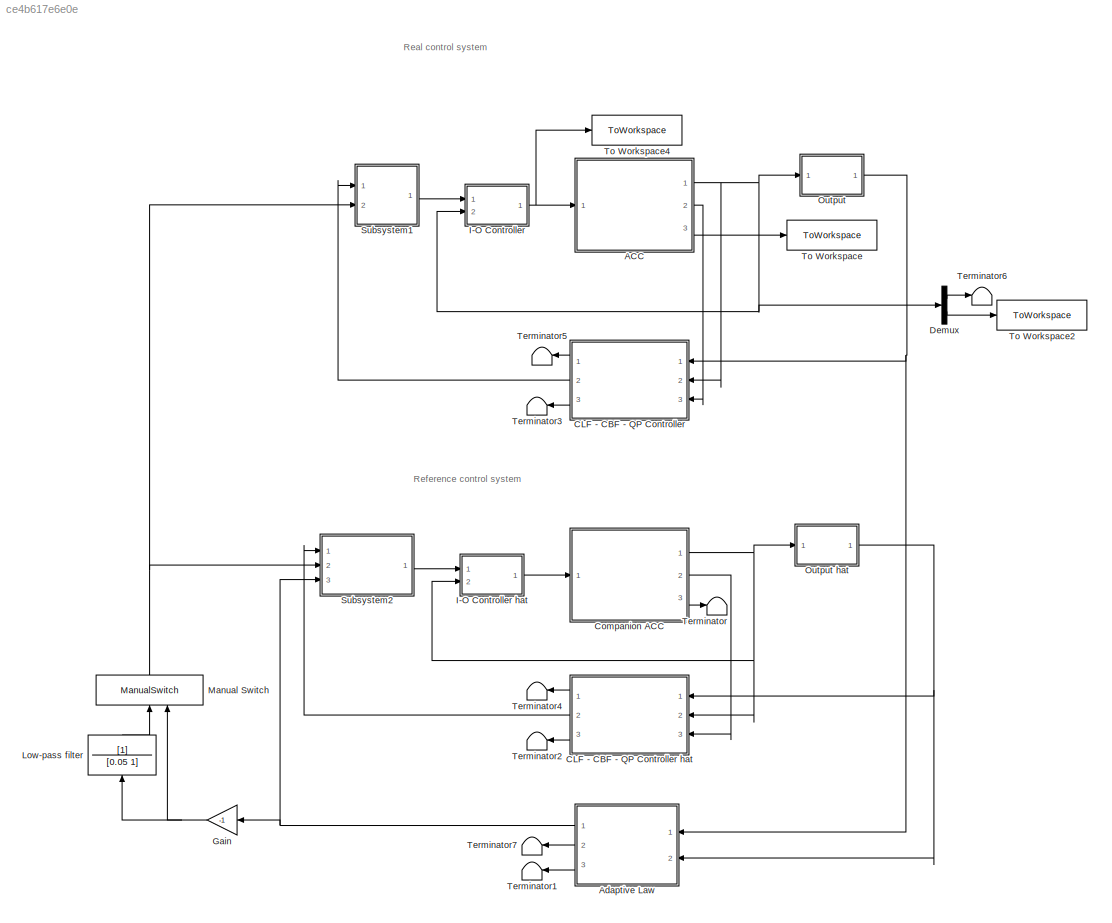
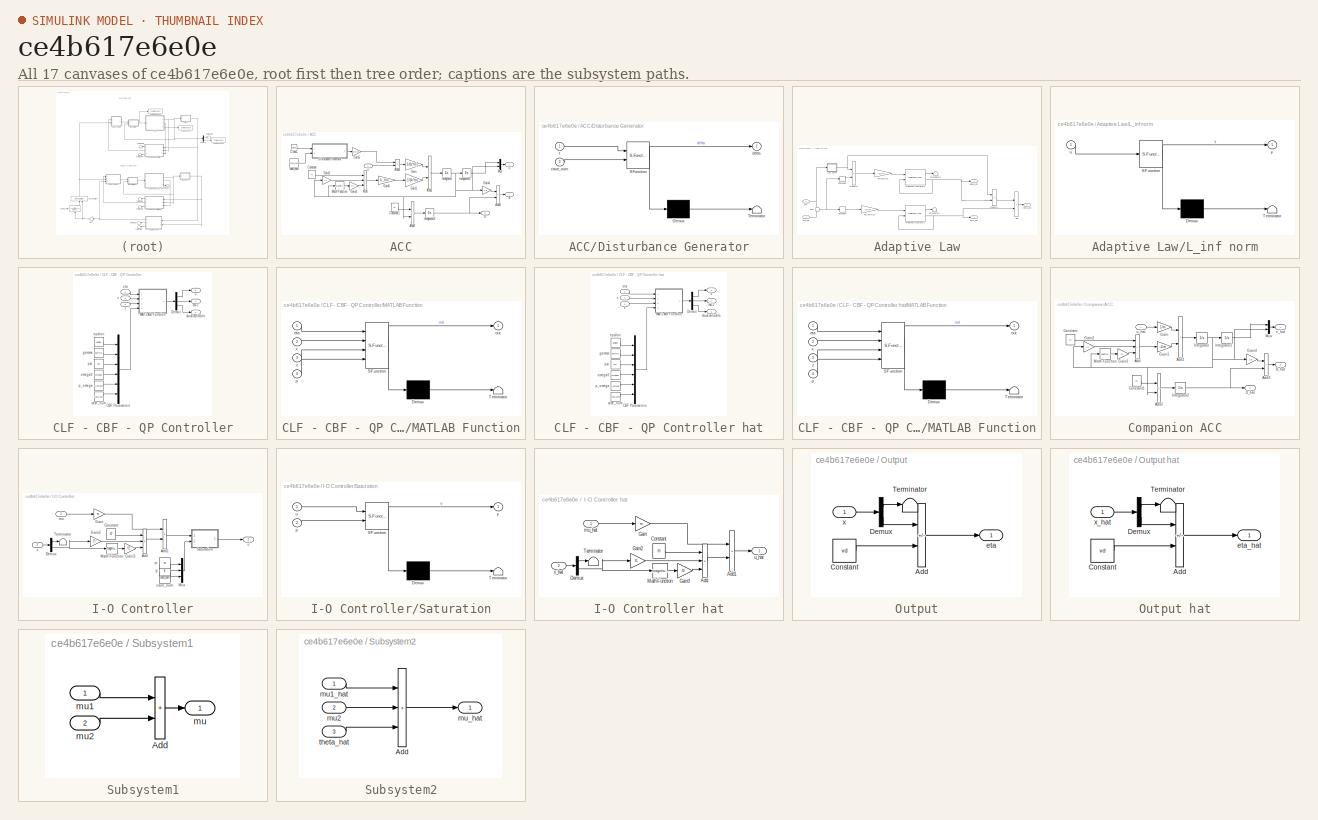
[diagram: thumbnail index - all 17 canvases of the model, root first then tree order]
MODEL slx_ce4b617e6e0e
KIND model
CONFIG AbsTol = auto
CONFIG EnableMultiTasking = off
CONFIG FixedStep = 0.001
CONFIG InitFcn = tic;\ndisp('Simulation started...');\nL1_CBF_ACC
CONFIG MaxStep = auto
CONFIG MinStep = auto
CONFIG RelTol = 1e-3
CONFIG SampleTimeConstraint = Unconstrained
CONFIG Solver = FixedStepAuto
CONFIG SolverName = FixedStepAuto
CONFIG StartTime = 0.0
CONFIG StopFcn = elapsedTime_L1 = toc; % Stop timer when simulation ends\nfprintf('Simulation Time: %.6f seconds\n', elapsedTime_L1);\n\n% out_L1 = out;
CONFIG StopTime = Tsim
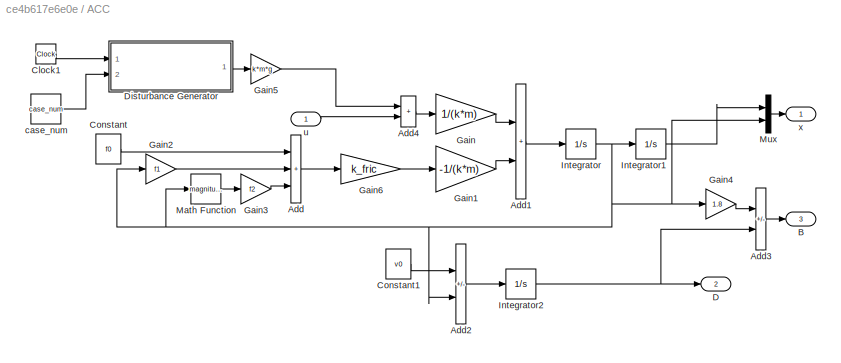
BLOCK [SubSystem] ACC
  Ports = [1, 3]
BLOCK [Sum] ACC/Add
  IconShape = rectangular
  Inputs = +++
  Ports = [3, 1]
BLOCK [Sum] ACC/Add1
  IconShape = rectangular
  Ports = [2, 1]
BLOCK [Sum] ACC/Add2
  IconShape = rectangular
  Inputs = +-
  Ports = [2, 1]
BLOCK [Sum] ACC/Add3
  IconShape = rectangular
  Inputs = -+
  Ports = [2, 1]
BLOCK [Sum] ACC/Add4
  IconShape = rectangular
  Ports = [2, 1]
BLOCK [Outport] ACC/B
  Port = 3
  PortDimensions = 1
BLOCK [Clock] ACC/Clock1
BLOCK [Constant] ACC/Constant
  Value = f0
BLOCK [Constant] ACC/Constant1
  Value = v0
BLOCK [Outport] ACC/D
  Port = 2
  PortDimensions = 1
BLOCK [SubSystem] ACC/Disturbance Generator
  ErrorFcn = Stateflow.Translate.translate
  PermitHierarchicalResolution = ExplicitOnly
  Ports = [2, 1]
  SFBlockType = MATLAB Function
  TreatAsAtomicUnit = on
BLOCK [Demux] ACC/Disturbance Generator/ Demux 
  Outputs = 1
  Ports = [1, 1]
BLOCK [S-Function] ACC/Disturbance Generator/ SFunction 
  EnableBusSupport = off
  FunctionName = sf_sfun
  PortCounts = [2 2]
  Ports = [2, 2]
  SFcnIsStateOwnerBlock = off
  SFunctionDeploymentMode = off
  Tag = Stateflow S-Function L1_CBF_ACC 5
BLOCK [Terminator] ACC/Disturbance Generator/ Terminator 
BLOCK [Inport] ACC/Disturbance Generator/case_num
  Port = 2
BLOCK [Outport] ACC/Disturbance Generator/delta
BLOCK [Inport] ACC/Disturbance Generator/t
BLOCK [Gain] ACC/Gain
  Gain = 1/(k*m)
BLOCK [Gain] ACC/Gain1
  Gain = -1/(k*m)
BLOCK [Gain] ACC/Gain2
  Gain = f1
BLOCK [Gain] ACC/Gain3
  Gain = f2
BLOCK [Gain] ACC/Gain4
  Gain = 1.8
BLOCK [Gain] ACC/Gain5
  Gain = k*m*g
BLOCK [Gain] ACC/Gain6
  Gain = k_fric
BLOCK [Integrator] ACC/Integrator
  InitialCondition = x20
  Ports = [1, 1]
BLOCK [Integrator] ACC/Integrator1
  InitialCondition = x10
  Ports = [1, 1]
BLOCK [Integrator] ACC/Integrator2
  InitialCondition = D0
  Ports = [1, 1]
BLOCK [Math] ACC/Math Function
  Operator = magnitude^2
  Ports = [1, 1]
BLOCK [Mux] ACC/Mux
  DisplayOption = bar
  Inputs = 2
  Ports = [2, 1]
BLOCK [Constant] ACC/case_num
  Value = case_num
BLOCK [Inport] ACC/u
  PortDimensions = 1
BLOCK [Outport] ACC/x
  PortDimensions = 2
BLOCK [SubSystem] Adaptive Law
  Ports = [2, 3]
BLOCK [Sum] Adaptive Law/Add
  IconShape = rectangular
  Ports = [2, 1]
BLOCK [SubSystem] Adaptive Law/L_inf norm
  ErrorFcn = Stateflow.Translate.translate
  PermitHierarchicalResolution = ExplicitOnly
  Ports = [1, 1]
  SFBlockType = MATLAB Function
  TreatAsAtomicUnit = on
BLOCK [Demux] Adaptive Law/L_inf norm/ Demux 
  Outputs = 1
  Ports = [1, 1]
BLOCK [S-Function] Adaptive Law/L_inf norm/ SFunction 
  EnableBusSupport = off
  FunctionName = sf_sfun
  PortCounts = [1 2]
  Ports = [1, 2]
  SFcnIsStateOwnerBlock = off
  SFunctionDeploymentMode = off
  Tag = Stateflow S-Function L1_CBF_ACC 1
BLOCK [Terminator] Adaptive Law/L_inf norm/ Terminator 
BLOCK [Inport] Adaptive Law/L_inf norm/u
BLOCK [Outport] Adaptive Law/L_inf norm/y
BLOCK [Gain] Adaptive Law/PbGamma1
  Gain = -GTP
  Multiplication = Matrix(K*u) (u vector)
BLOCK [Gain] Adaptive Law/PbGamma2
  Gain = -GTP
  Multiplication = Matrix(K*u) (u vector)
BLOCK [Product] Adaptive Law/Product1
  Ports = [2, 1]
  RndMeth = Zero
BLOCK [Product] Adaptive Law/Product6
  Ports = [2, 1]
  RndMeth = Zero
BLOCK [Reference] Adaptive Law/Projection Operator1  REF=Projection/Projection Operator
  Ports = [2, 2]
  SourceBlock = Projection/Projection Operator
BLOCK [Reference] Adaptive Law/Projection Operator2  REF=Projection/Projection Operator
  Ports = [2, 2]
  SourceBlock = Projection/Projection Operator
BLOCK [Reshape] Adaptive Law/Reshape4
  OutputDimensionality = Row vector (2-D)
  Ports = [1, 1]
BLOCK [Reshape] Adaptive Law/Reshape5
  OutputDimensionality = Row vector (2-D)
  Ports = [1, 1]
BLOCK [Sum] Adaptive Law/Sum
  Inputs = -+
  Ports = [2, 1]
BLOCK [Terminator] Adaptive Law/Terminator1
BLOCK [Terminator] Adaptive Law/Terminator2
BLOCK [Outport] Adaptive Law/alpha_hat
  Port = 2
BLOCK [Outport] Adaptive Law/beta_hat
  Port = 3
BLOCK [Inport] Adaptive Law/eta
BLOCK [Inport] Adaptive Law/eta_hat
  Port = 2
BLOCK [Outport] Adaptive Law/theta_hat
BLOCK [SubSystem] CLF - CBF - QP Controller
  Ports = [3, 3]
BLOCK [SubSystem] CLF - CBF - QP Controller hat
  Ports = [3, 3]
BLOCK [Mux] CLF - CBF - QP Controller hat/CBF Parameters
  DisplayOption = bar
  Inputs = 6
  Ports = [6, 1]
BLOCK [Demux] CLF - CBF - QP Controller hat/Demux
  Outputs = 3
  Ports = [1, 3]
BLOCK [SubSystem] CLF - CBF - QP Controller hat/MATLAB Function
  ErrorFcn = Stateflow.Translate.translate
  PermitHierarchicalResolution = ExplicitOnly
  Ports = [4, 1]
  SFBlockType = MATLAB Function
  SystemSampleTime = 0.001
  TreatAsAtomicUnit = on
BLOCK [Demux] CLF - CBF - QP Controller hat/MATLAB Function/ Demux 
  Outputs = 1
  Ports = [1, 1]
BLOCK [S-Function] CLF - CBF - QP Controller hat/MATLAB Function/ SFunction 
  EnableBusSupport = off
  FunctionName = sf_sfun
  PortCounts = [4 2]
  Ports = [4, 2]
  SFcnIsStateOwnerBlock = off
  SFunctionDeploymentMode = off
  Tag = Stateflow S-Function L1_CBF_ACC 3
BLOCK [Terminator] CLF - CBF - QP Controller hat/MATLAB Function/ Terminator 
BLOCK [Inport] CLF - CBF - QP Controller hat/MATLAB Function/eta
BLOCK [Outport] CLF - CBF - QP Controller hat/MATLAB Function/out
BLOCK [Inport] CLF - CBF - QP Controller hat/MATLAB Function/p
  Port = 4
BLOCK [Inport] CLF - CBF - QP Controller hat/MATLAB Function/x
  Port = 2
BLOCK [Inport] CLF - CBF - QP Controller hat/MATLAB Function/z
  Port = 3
BLOCK [Constant] CLF - CBF - QP Controller hat/case_num
  Value = case_num
BLOCK [Constant] CLF - CBF - QP Controller hat/epsilon
  Value = epsilon
BLOCK [Inport] CLF - CBF - QP Controller hat/eta
  PortDimensions = 1
BLOCK [Constant] CLF - CBF - QP Controller hat/gamma
  Value = gamma
BLOCK [Outport] CLF - CBF - QP Controller hat/mu1
  Port = 2
  PortDimensions = 1
BLOCK [Constant] CLF - CBF - QP Controller hat/omega0
  Value = omega0
BLOCK [Constant] CLF - CBF - QP Controller hat/p_omega
  Value = p_omega
BLOCK [Constant] CLF - CBF - QP Controller hat/psc
  Value = psc
BLOCK [Outport] CLF - CBF - QP Controller hat/slack variable
  Port = 3
  PortDimensions = 1
BLOCK [Outport] CLF - CBF - QP Controller hat/u
  PortDimensions = 1
BLOCK [Inport] CLF - CBF - QP Controller hat/x
  Port = 2
  PortDimensions = 2
BLOCK [Inport] CLF - CBF - QP Controller hat/z
  Port = 3
  PortDimensions = 1
BLOCK [Mux] CLF - CBF - QP Controller/CBF Parameters
  DisplayOption = bar
  Inputs = 6
  Ports = [6, 1]
BLOCK [Demux] CLF - CBF - QP Controller/Demux
  Outputs = 3
  Ports = [1, 3]
BLOCK [SubSystem] CLF - CBF - QP Controller/MATLAB Function
  ErrorFcn = Stateflow.Translate.translate
  PermitHierarchicalResolution = ExplicitOnly
  Ports = [4, 1]
  SFBlockType = MATLAB Function
  SystemSampleTime = 0.001
  TreatAsAtomicUnit = on
BLOCK [Demux] CLF - CBF - QP Controller/MATLAB Function/ Demux 
  Outputs = 1
  Ports = [1, 1]
BLOCK [S-Function] CLF - CBF - QP Controller/MATLAB Function/ SFunction 
  EnableBusSupport = off
  FunctionName = sf_sfun
  PortCounts = [4 2]
  Ports = [4, 2]
  SFcnIsStateOwnerBlock = off
  SFunctionDeploymentMode = off
  Tag = Stateflow S-Function L1_CBF_ACC 4
BLOCK [Terminator] CLF - CBF - QP Controller/MATLAB Function/ Terminator 
BLOCK [Inport] CLF - CBF - QP Controller/MATLAB Function/eta
BLOCK [Outport] CLF - CBF - QP Controller/MATLAB Function/out
BLOCK [Inport] CLF - CBF - QP Controller/MATLAB Function/p
  Port = 4
BLOCK [Inport] CLF - CBF - QP Controller/MATLAB Function/x
  Port = 2
BLOCK [Inport] CLF - CBF - QP Controller/MATLAB Function/z
  Port = 3
BLOCK [Constant] CLF - CBF - QP Controller/case_num
  Value = case_num
BLOCK [Constant] CLF - CBF - QP Controller/epsilon
  Value = epsilon
BLOCK [Inport] CLF - CBF - QP Controller/eta
  PortDimensions = 1
BLOCK [Constant] CLF - CBF - QP Controller/gamma
  Value = gamma
BLOCK [Outport] CLF - CBF - QP Controller/mu1
  Port = 2
  PortDimensions = 1
BLOCK [Constant] CLF - CBF - QP Controller/omega0
  Value = omega0
BLOCK [Constant] CLF - CBF - QP Controller/p_omega
  Value = p_omega
BLOCK [Constant] CLF - CBF - QP Controller/psc
  Value = psc
BLOCK [Outport] CLF - CBF - QP Controller/slack variable
  Port = 3
  PortDimensions = 1
BLOCK [Outport] CLF - CBF - QP Controller/u
  PortDimensions = 1
BLOCK [Inport] CLF - CBF - QP Controller/x
  Port = 2
  PortDimensions = 2
BLOCK [Inport] CLF - CBF - QP Controller/z
  Port = 3
  PortDimensions = 1
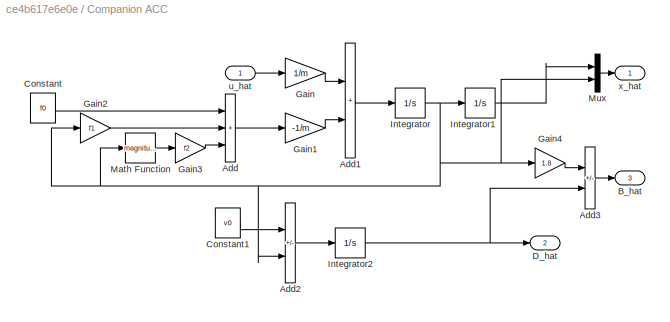
BLOCK [SubSystem] Companion ACC
  Ports = [1, 3]
BLOCK [Sum] Companion ACC/Add
  IconShape = rectangular
  Inputs = +++
  Ports = [3, 1]
BLOCK [Sum] Companion ACC/Add1
  IconShape = rectangular
  Ports = [2, 1]
BLOCK [Sum] Companion ACC/Add2
  IconShape = rectangular
  Inputs = +-
  Ports = [2, 1]
BLOCK [Sum] Companion ACC/Add3
  IconShape = rectangular
  Inputs = -+
  Ports = [2, 1]
BLOCK [Outport] Companion ACC/B_hat
  Port = 3
  PortDimensions = 1
BLOCK [Constant] Companion ACC/Constant
  Value = f0
BLOCK [Constant] Companion ACC/Constant1
  Value = v0
BLOCK [Outport] Companion ACC/D_hat
  Port = 2
  PortDimensions = 1
BLOCK [Gain] Companion ACC/Gain
  Gain = 1/m
BLOCK [Gain] Companion ACC/Gain1
  Gain = -1/m
BLOCK [Gain] Companion ACC/Gain2
  Gain = f1
BLOCK [Gain] Companion ACC/Gain3
  Gain = f2
BLOCK [Gain] Companion ACC/Gain4
  Gain = 1.8
BLOCK [Integrator] Companion ACC/Integrator
  InitialCondition = x20
  Ports = [1, 1]
BLOCK [Integrator] Companion ACC/Integrator1
  InitialCondition = x10
  Ports = [1, 1]
BLOCK [Integrator] Companion ACC/Integrator2
  InitialCondition = D0
  Ports = [1, 1]
BLOCK [Math] Companion ACC/Math Function
  Operator = magnitude^2
  Ports = [1, 1]
BLOCK [Mux] Companion ACC/Mux
  DisplayOption = bar
  Inputs = 2
  Ports = [2, 1]
BLOCK [Inport] Companion ACC/u_hat
  PortDimensions = 1
BLOCK [Outport] Companion ACC/x_hat
  PortDimensions = 2
BLOCK [Demux] Demux
  Outputs = 2
  Ports = [1, 2]
BLOCK [Gain] Gain
  Gain = -1
BLOCK [SubSystem] I-O Controller
  Ports = [2, 1]
BLOCK [SubSystem] I-O Controller hat
  Ports = [2, 1]
BLOCK [Sum] I-O Controller hat/Add
  IconShape = rectangular
  Inputs = +++
  Ports = [3, 1]
BLOCK [Sum] I-O Controller hat/Add1
  IconShape = rectangular
  Ports = [2, 1]
BLOCK [Constant] I-O Controller hat/Constant
  Value = f0
BLOCK [Demux] I-O Controller hat/Demux
  Outputs = 2
  Ports = [1, 2]
BLOCK [Gain] I-O Controller hat/Gain
  Gain = m
BLOCK [Gain] I-O Controller hat/Gain2
  Gain = f1
BLOCK [Gain] I-O Controller hat/Gain3
  Gain = f2
BLOCK [Math] I-O Controller hat/Math Function
  Operator = magnitude^2
  Ports = [1, 1]
BLOCK [Terminator] I-O Controller hat/Terminator
BLOCK [Inport] I-O Controller hat/mu_hat
BLOCK [Outport] I-O Controller hat/u_hat
  PortDimensions = 1
BLOCK [Inport] I-O Controller hat/x_hat
  Port = 2
  PortDimensions = 2
BLOCK [Sum] I-O Controller/Add
  IconShape = rectangular
  Inputs = +++
  Ports = [3, 1]
BLOCK [Sum] I-O Controller/Add1
  IconShape = rectangular
  Ports = [2, 1]
BLOCK [Constant] I-O Controller/Constant
  Value = f0
BLOCK [Demux] I-O Controller/Demux
  Outputs = 2
  Ports = [1, 2]
BLOCK [Gain] I-O Controller/Gain
  Gain = m
BLOCK [Gain] I-O Controller/Gain2
  Gain = f1
BLOCK [Gain] I-O Controller/Gain3
  Gain = f2
BLOCK [Math] I-O Controller/Math Function
  Operator = magnitude^2
  Ports = [1, 1]
BLOCK [Mux] I-O Controller/Mux
  DisplayOption = bar
  Inputs = 3
  Ports = [3, 1]
BLOCK [SubSystem] I-O Controller/Saturation
  ErrorFcn = Stateflow.Translate.translate
  PermitHierarchicalResolution = ExplicitOnly
  Ports = [2, 1]
  SFBlockType = MATLAB Function
  TreatAsAtomicUnit = on
BLOCK [Demux] I-O Controller/Saturation/ Demux 
  Outputs = 1
  Ports = [1, 1]
BLOCK [S-Function] I-O Controller/Saturation/ SFunction 
  EnableBusSupport = off
  FunctionName = sf_sfun
  PortCounts = [2 2]
  Ports = [2, 2]
  SFcnIsStateOwnerBlock = off
  SFunctionDeploymentMode = off
  Tag = Stateflow S-Function L1_CBF_ACC 2
BLOCK [Terminator] I-O Controller/Saturation/ Terminator 
BLOCK [Inport] I-O Controller/Saturation/p
  Port = 2
BLOCK [Inport] I-O Controller/Saturation/u
BLOCK [Outport] I-O Controller/Saturation/y
BLOCK [Terminator] I-O Controller/Terminator
BLOCK [Constant] I-O Controller/case_num
  Value = case_num
BLOCK [Constant] I-O Controller/g
  Value = g
BLOCK [Constant] I-O Controller/m
  Value = m
BLOCK [Inport] I-O Controller/mu
BLOCK [Outport] I-O Controller/u
  PortDimensions = 1
BLOCK [Inport] I-O Controller/x
  Port = 2
  PortDimensions = 2
BLOCK [TransferFcn] Low-pass filter
  Denominator = [0.05 1]
BLOCK [ManualSwitch] Manual Switch
BLOCK [SubSystem] Output
  Ports = [1, 1]
BLOCK [SubSystem] Output hat
  Ports = [1, 1]
BLOCK [Sum] Output hat/Add
  IconShape = rectangular
  Inputs = +-
  Ports = [2, 1]
BLOCK [Constant] Output hat/Constant
  Value = vd
BLOCK [Demux] Output hat/Demux
  Outputs = 2
  Ports = [1, 2]
BLOCK [Terminator] Output hat/Terminator
BLOCK [Outport] Output hat/eta_hat
  PortDimensions = 1
BLOCK [Inport] Output hat/x_hat
  PortDimensions = 2
BLOCK [Sum] Output/Add
  IconShape = rectangular
  Inputs = +-
  Ports = [2, 1]
BLOCK [Constant] Output/Constant
  Value = vd
BLOCK [Demux] Output/Demux
  Outputs = 2
  Ports = [1, 2]
BLOCK [Terminator] Output/Terminator
BLOCK [Outport] Output/eta
  PortDimensions = 1
BLOCK [Inport] Output/x
  PortDimensions = 2
BLOCK [SubSystem] Subsystem1
  Ports = [2, 1]
BLOCK [Sum] Subsystem1/Add
  IconShape = rectangular
  Ports = [2, 1]
BLOCK [Outport] Subsystem1/mu
BLOCK [Inport] Subsystem1/mu1
BLOCK [Inport] Subsystem1/mu2
  Port = 2
BLOCK [SubSystem] Subsystem2
  Ports = [3, 1]
BLOCK [Sum] Subsystem2/Add
  IconShape = rectangular
  Inputs = +++
  Ports = [3, 1]
BLOCK [Inport] Subsystem2/mu1_hat
BLOCK [Inport] Subsystem2/mu2
  Port = 2
BLOCK [Outport] Subsystem2/mu_hat
BLOCK [Inport] Subsystem2/theta_hat
  Port = 3
BLOCK [Terminator] Terminator
BLOCK [Terminator] Terminator1
BLOCK [Terminator] Terminator2
BLOCK [Terminator] Terminator3
BLOCK [Terminator] Terminator4
BLOCK [Terminator] Terminator5
BLOCK [Terminator] Terminator6
BLOCK [Terminator] Terminator7
BLOCK [ToWorkspace] To Workspace
  FixptAsFi = on
  MaxDataPoints = inf
  Ports = [1]
  SampleTime = -1
  VariableName = h
BLOCK [ToWorkspace] To Workspace2
  FixptAsFi = on
  MaxDataPoints = inf
  Ports = [1]
  SampleTime = -1
  VariableName = x2
BLOCK [ToWorkspace] To Workspace4
  FixptAsFi = on
  MaxDataPoints = inf
  Ports = [1]
  SampleTime = -1
  VariableName = u
ANNOTATION (root): Real control system
ANNOTATION (root): Reference control system
LINE ACC/Add1:1 -> ACC/Integrator:1
LINE ACC/Add2:1 -> ACC/Integrator2:1
LINE ACC/Add3:1 -> ACC/B:1
LINE ACC/Add4:1 -> ACC/Gain:1
LINE ACC/Add:1 -> ACC/Gain6:1
LINE ACC/Clock1:1 -> ACC/Disturbance Generator:1
LINE ACC/Constant1:1 -> ACC/Add2:1
LINE ACC/Constant:1 -> ACC/Add:1
LINE ACC/Disturbance Generator:1 -> ACC/Gain5:1
LINE ACC/Gain1:1 -> ACC/Add1:2
LINE ACC/Gain2:1 -> ACC/Add:2
LINE ACC/Gain3:1 -> ACC/Add:3
LINE ACC/Gain4:1 -> ACC/Add3:1
LINE ACC/Gain5:1 -> ACC/Add4:1
LINE ACC/Gain6:1 -> ACC/Gain1:1
LINE ACC/Gain:1 -> ACC/Add1:1
LINE ACC/Integrator1:1 -> ACC/Mux:1
NET ACC/Integrator2:1 -> ACC/Add3:2, ACC/D:1
NET ACC/Integrator:1 -> ACC/Add2:2, ACC/Gain2:1, ACC/Gain4:1, ACC/Integrator1:1, ACC/Math Function:1, ACC/Mux:2
LINE ACC/Math Function:1 -> ACC/Gain3:1
LINE ACC/Mux:1 -> ACC/x:1
LINE ACC/case_num:1 -> ACC/Disturbance Generator:2
LINE ACC/u:1 -> ACC/Add4:2
NET ACC:1 -> CLF - CBF - QP Controller:2, Demux:1, I-O Controller:2, Output:1
LINE ACC:2 -> CLF - CBF - QP Controller:3
LINE ACC:3 -> To Workspace:1
LINE Adaptive Law/Add:1 -> Adaptive Law/theta_hat:1
NET Adaptive Law/L_inf norm:1 -> Adaptive Law/Product1:1, Adaptive Law/Product6:1
LINE Adaptive Law/PbGamma1:1 -> Adaptive Law/Projection Operator2:1
LINE Adaptive Law/PbGamma2:1 -> Adaptive Law/Projection Operator1:1
LINE Adaptive Law/Product1:1 -> Adaptive Law/Add:1
LINE Adaptive Law/Product6:1 -> Adaptive Law/PbGamma1:1
LINE Adaptive Law/Projection Operator1:1 -> Adaptive Law/Terminator2:1
NET Adaptive Law/Projection Operator1:2 -> Adaptive Law/Add:2, Adaptive Law/Projection Operator1:2, Adaptive Law/beta_hat:1
LINE Adaptive Law/Projection Operator2:1 -> Adaptive Law/Terminator1:1
NET Adaptive Law/Projection Operator2:2 -> Adaptive Law/Product1:2, Adaptive Law/Projection Operator2:2, Adaptive Law/alpha_hat:1
LINE Adaptive Law/Reshape4:1 -> Adaptive Law/PbGamma2:1
LINE Adaptive Law/Reshape5:1 -> Adaptive Law/Product6:2
NET Adaptive Law/Sum:1 -> Adaptive Law/Reshape4:1, Adaptive Law/Reshape5:1
NET Adaptive Law/eta:1 -> Adaptive Law/L_inf norm:1, Adaptive Law/Sum:1
LINE Adaptive Law/eta_hat:1 -> Adaptive Law/Sum:2
NET Adaptive Law:1 -> Gain:1, Subsystem2:3
LINE Adaptive Law:2 -> Terminator7:1
LINE Adaptive Law:3 -> Terminator1:1
LINE CLF - CBF - QP Controller hat/CBF Parameters:1 -> CLF - CBF - QP Controller hat/MATLAB Function:4
LINE CLF - CBF - QP Controller hat/Demux:1 -> CLF - CBF - QP Controller hat/u:1
LINE CLF - CBF - QP Controller hat/Demux:2 -> CLF - CBF - QP Controller hat/mu1:1
LINE CLF - CBF - QP Controller hat/Demux:3 -> CLF - CBF - QP Controller hat/slack variable:1
LINE CLF - CBF - QP Controller hat/MATLAB Function:1 -> CLF - CBF - QP Controller hat/Demux:1
LINE CLF - CBF - QP Controller hat/case_num:1 -> CLF - CBF - QP Controller hat/CBF Parameters:6
LINE CLF - CBF - QP Controller hat/epsilon:1 -> CLF - CBF - QP Controller hat/CBF Parameters:1
LINE CLF - CBF - QP Controller hat/eta:1 -> CLF - CBF - QP Controller hat/MATLAB Function:1
LINE CLF - CBF - QP Controller hat/gamma:1 -> CLF - CBF - QP Controller hat/CBF Parameters:2
LINE CLF - CBF - QP Controller hat/omega0:1 -> CLF - CBF - QP Controller hat/CBF Parameters:4
LINE CLF - CBF - QP Controller hat/p_omega:1 -> CLF - CBF - QP Controller hat/CBF Parameters:5
LINE CLF - CBF - QP Controller hat/psc:1 -> CLF - CBF - QP Controller hat/CBF Parameters:3
LINE CLF - CBF - QP Controller hat/x:1 -> CLF - CBF - QP Controller hat/MATLAB Function:2
LINE CLF - CBF - QP Controller hat/z:1 -> CLF - CBF - QP Controller hat/MATLAB Function:3
LINE CLF - CBF - QP Controller hat:1 -> Terminator4:1
LINE CLF - CBF - QP Controller hat:2 -> Subsystem2:1
LINE CLF - CBF - QP Controller hat:3 -> Terminator2:1
LINE CLF - CBF - QP Controller/CBF Parameters:1 -> CLF - CBF - QP Controller/MATLAB Function:4
LINE CLF - CBF - QP Controller/Demux:1 -> CLF - CBF - QP Controller/u:1
LINE CLF - CBF - QP Controller/Demux:2 -> CLF - CBF - QP Controller/mu1:1
LINE CLF - CBF - QP Controller/Demux:3 -> CLF - CBF - QP Controller/slack variable:1
LINE CLF - CBF - QP Controller/MATLAB Function:1 -> CLF - CBF - QP Controller/Demux:1
LINE CLF - CBF - QP Controller/case_num:1 -> CLF - CBF - QP Controller/CBF Parameters:6
LINE CLF - CBF - QP Controller/epsilon:1 -> CLF - CBF - QP Controller/CBF Parameters:1
LINE CLF - CBF - QP Controller/eta:1 -> CLF - CBF - QP Controller/MATLAB Function:1
LINE CLF - CBF - QP Controller/gamma:1 -> CLF - CBF - QP Controller/CBF Parameters:2
LINE CLF - CBF - QP Controller/omega0:1 -> CLF - CBF - QP Controller/CBF Parameters:4
LINE CLF - CBF - QP Controller/p_omega:1 -> CLF - CBF - QP Controller/CBF Parameters:5
LINE CLF - CBF - QP Controller/psc:1 -> CLF - CBF - QP Controller/CBF Parameters:3
LINE CLF - CBF - QP Controller/x:1 -> CLF - CBF - QP Controller/MATLAB Function:2
LINE CLF - CBF - QP Controller/z:1 -> CLF - CBF - QP Controller/MATLAB Function:3
LINE CLF - CBF - QP Controller:1 -> Terminator5:1
LINE CLF - CBF - QP Controller:2 -> Subsystem1:1
LINE CLF - CBF - QP Controller:3 -> Terminator3:1
LINE Companion ACC/Add1:1 -> Companion ACC/Integrator:1
LINE Companion ACC/Add2:1 -> Companion ACC/Integrator2:1
LINE Companion ACC/Add3:1 -> Companion ACC/B_hat:1
LINE Companion ACC/Add:1 -> Companion ACC/Gain1:1
LINE Companion ACC/Constant1:1 -> Companion ACC/Add2:1
LINE Companion ACC/Constant:1 -> Companion ACC/Add:1
LINE Companion ACC/Gain1:1 -> Companion ACC/Add1:2
LINE Companion ACC/Gain2:1 -> Companion ACC/Add:2
LINE Companion ACC/Gain3:1 -> Companion ACC/Add:3
LINE Companion ACC/Gain4:1 -> Companion ACC/Add3:1
LINE Companion ACC/Gain:1 -> Companion ACC/Add1:1
LINE Companion ACC/Integrator1:1 -> Companion ACC/Mux:1
NET Companion ACC/Integrator2:1 -> Companion ACC/Add3:2, Companion ACC/D_hat:1
NET Companion ACC/Integrator:1 -> Companion ACC/Add2:2, Companion ACC/Gain2:1, Companion ACC/Gain4:1, Companion ACC/Integrator1:1, Companion ACC/Math Function:1, Companion ACC/Mux:2
LINE Companion ACC/Math Function:1 -> Companion ACC/Gain3:1
LINE Companion ACC/Mux:1 -> Companion ACC/x_hat:1
LINE Companion ACC/u_hat:1 -> Companion ACC/Gain:1
NET Companion ACC:1 -> CLF - CBF - QP Controller hat:2, I-O Controller hat:2, Output hat:1
LINE Companion ACC:2 -> CLF - CBF - QP Controller hat:3
LINE Companion ACC:3 -> Terminator:1
LINE Demux:1 -> Terminator6:1
LINE Demux:2 -> To Workspace2:1
NET Gain:1 -> Low-pass filter:1, Manual Switch:2
LINE I-O Controller hat/Add1:1 -> I-O Controller hat/u_hat:1
LINE I-O Controller hat/Add:1 -> I-O Controller hat/Add1:2
LINE I-O Controller hat/Constant:1 -> I-O Controller hat/Add:1
LINE I-O Controller hat/Demux:1 -> I-O Controller hat/Terminator:1
NET I-O Controller hat/Demux:2 -> I-O Controller hat/Gain2:1, I-O Controller hat/Math Function:1
LINE I-O Controller hat/Gain2:1 -> I-O Controller hat/Add:2
LINE I-O Controller hat/Gain3:1 -> I-O Controller hat/Add:3
LINE I-O Controller hat/Gain:1 -> I-O Controller hat/Add1:1
LINE I-O Controller hat/Math Function:1 -> I-O Controller hat/Gain3:1
LINE I-O Controller hat/mu_hat:1 -> I-O Controller hat/Gain:1
LINE I-O Controller hat/x_hat:1 -> I-O Controller hat/Demux:1
LINE I-O Controller hat:1 -> Companion ACC:1
LINE I-O Controller/Add1:1 -> I-O Controller/Saturation:1
LINE I-O Controller/Add:1 -> I-O Controller/Add1:2
LINE I-O Controller/Constant:1 -> I-O Controller/Add:1
LINE I-O Controller/Demux:1 -> I-O Controller/Terminator:1
NET I-O Controller/Demux:2 -> I-O Controller/Gain2:1, I-O Controller/Math Function:1
LINE I-O Controller/Gain2:1 -> I-O Controller/Add:2
LINE I-O Controller/Gain3:1 -> I-O Controller/Add:3
LINE I-O Controller/Gain:1 -> I-O Controller/Add1:1
LINE I-O Controller/Math Function:1 -> I-O Controller/Gain3:1
LINE I-O Controller/Mux:1 -> I-O Controller/Saturation:2
LINE I-O Controller/Saturation:1 -> I-O Controller/u:1
LINE I-O Controller/case_num:1 -> I-O Controller/Mux:3
LINE I-O Controller/g:1 -> I-O Controller/Mux:2
LINE I-O Controller/m:1 -> I-O Controller/Mux:1
LINE I-O Controller/mu:1 -> I-O Controller/Gain:1
LINE I-O Controller/x:1 -> I-O Controller/Demux:1
NET I-O Controller:1 -> ACC:1, To Workspace4:1
LINE Low-pass filter:1 -> Manual Switch:1
NET Manual Switch:1 -> Subsystem1:2, Subsystem2:2
LINE Output hat/Add:1 -> Output hat/eta_hat:1
LINE Output hat/Constant:1 -> Output hat/Add:2
LINE Output hat/Demux:1 -> Output hat/Terminator:1
LINE Output hat/Demux:2 -> Output hat/Add:1
LINE Output hat/x_hat:1 -> Output hat/Demux:1
NET Output hat:1 -> Adaptive Law:2, CLF - CBF - QP Controller hat:1
LINE Output/Add:1 -> Output/eta:1
LINE Output/Constant:1 -> Output/Add:2
LINE Output/Demux:1 -> Output/Terminator:1
LINE Output/Demux:2 -> Output/Add:1
LINE Output/x:1 -> Output/Demux:1
NET Output:1 -> Adaptive Law:1, CLF - CBF - QP Controller:1
LINE Subsystem1/Add:1 -> Subsystem1/mu:1
LINE Subsystem1/mu1:1 -> Subsystem1/Add:1
LINE Subsystem1/mu2:1 -> Subsystem1/Add:2
LINE Subsystem1:1 -> I-O Controller:1
LINE Subsystem2/Add:1 -> Subsystem2/mu_hat:1
LINE Subsystem2/mu1_hat:1 -> Subsystem2/Add:1
LINE Subsystem2/mu2:1 -> Subsystem2/Add:2
LINE Subsystem2/theta_hat:1 -> Subsystem2/Add:3
LINE Subsystem2:1 -> I-O Controller hat:1
note: NET lines group one-source signal fan-out (src -> all destinations, sorted); 1:1 wires keep LINE
CHART Adaptive Law/L_inf norm states=1 transitions=1
  STATE_LABEL 'eML_blk_kernel()'
  STATE_LABEL 'SCRIPT:\nfunction y = fcn(u)\n\ny = max(abs(u));\n'
CHART I-O Controller/Saturation states=1 transitions=1
  STATE_LABEL 'eML_blk_kernel()'
  STATE_LABEL 'SCRIPT:\nfunction y = fcn(u, p)\n\nm = p(1);\ng = p(2);\ncase_num = p(3);\n\nif case_num == 1 || case_num == 2\n    y = u;\nelse\n    if u >= 0.3*m*g\n        y = 0.3*m*g;\n    elseif u <= -0.3*m*g\n        y = -0.3*m*g;\n    else\n        y = u;\n    end\nend\n\nend'
CHART CLF - CBF - QP Controller hat/MATLAB Function states=1 transitions=1
  STATE_LABEL 'eML_blk_kernel()'
  STATE_LABEL "SCRIPT:\nfunction out = QP_Controller(eta, x, z, p)\ncoder.extrinsic('quadprog');\n\nout = zeros(3,1);\n\nx2 = x(2); \n\ncase_num = p(6);\nif case_num == 1 || case_num == 2\n    mode = 1;\nelse \n    mode = 2;\nend\n\n%% Physical parameters\nm = 1650;\ng = 9.81; \nf0 = 0.1;\nf1 = 5;\nf2 = 0.25;\nvd = 24;\nv0 =  13.89;\n\nca = 0.3;\ncd = 0.3;\n\n%% Controller parameters\nepsilon = p(1); \ngamma = p(2);\npsc = p(3);\nomega0 = p(4...<+1797ch>"
CHART CLF - CBF - QP Controller/MATLAB Function states=1 transitions=1
  STATE_LABEL 'eML_blk_kernel()'
  STATE_LABEL "SCRIPT:\nfunction out = QP_Controller(eta, x, z, p)\ncoder.extrinsic('quadprog');\n\nout = zeros(3,1);\n\nx2 = x(2); \n\ncase_num = p(6);\nif case_num == 1 || case_num == 2\n    mode = 1;\nelse \n    mode = 2;\nend\n\n%% Physical parameters\nm = 1650;\ng = 9.81; \nf0 = 0.1;\nf1 = 5;\nf2 = 0.25;\nvd = 24;\nv0 =  13.89;\n\nca = 0.3;\ncd = 0.3;\n\n%% Controller parameters\nepsilon = p(1); \ngamma = p(2);\npsc = p(3);\nomega0 = p(4...<+1798ch>"
CHART ACC/Disturbance Generator states=1 transitions=1
  STATE_LABEL 'eML_blk_kernel()'
  STATE_LABEL 'SCRIPT:\nfunction delta = fcn(t, case_num)\n\nif case_num == 1\n    delta = 0.16*cos(2*pi*t/20) + 0.14*sin(2*pi*t/10 + pi/3);\nelseif case_num == 2\n    delta = 0.16*cos(2*pi*t/20) + 0.14*sin(2*pi*t/10 + pi/3);\nelse\n    % delta = 0.18*cos(2*pi*t/20) + 0.14*sin(2*pi*t/10 - pi/8);\n    delta = -(0.12*cos(2*pi*t/20) + 0.08*sin(2*pi*t/10 + pi/3));\nend\n'
